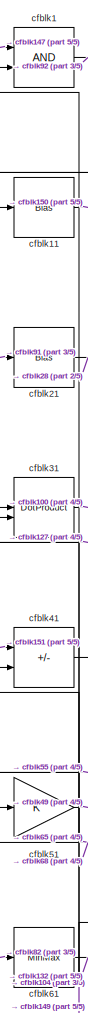
[diagram: root canvas - part 1/5, top left region]
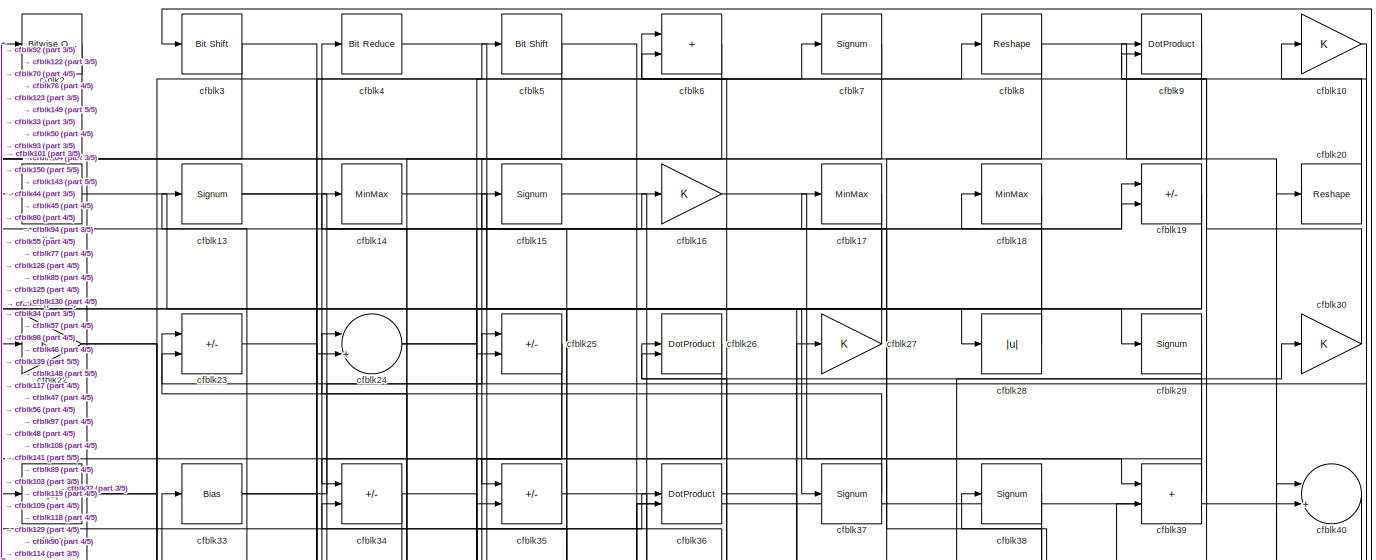
[diagram: root canvas - part 2/5, full width, top band]
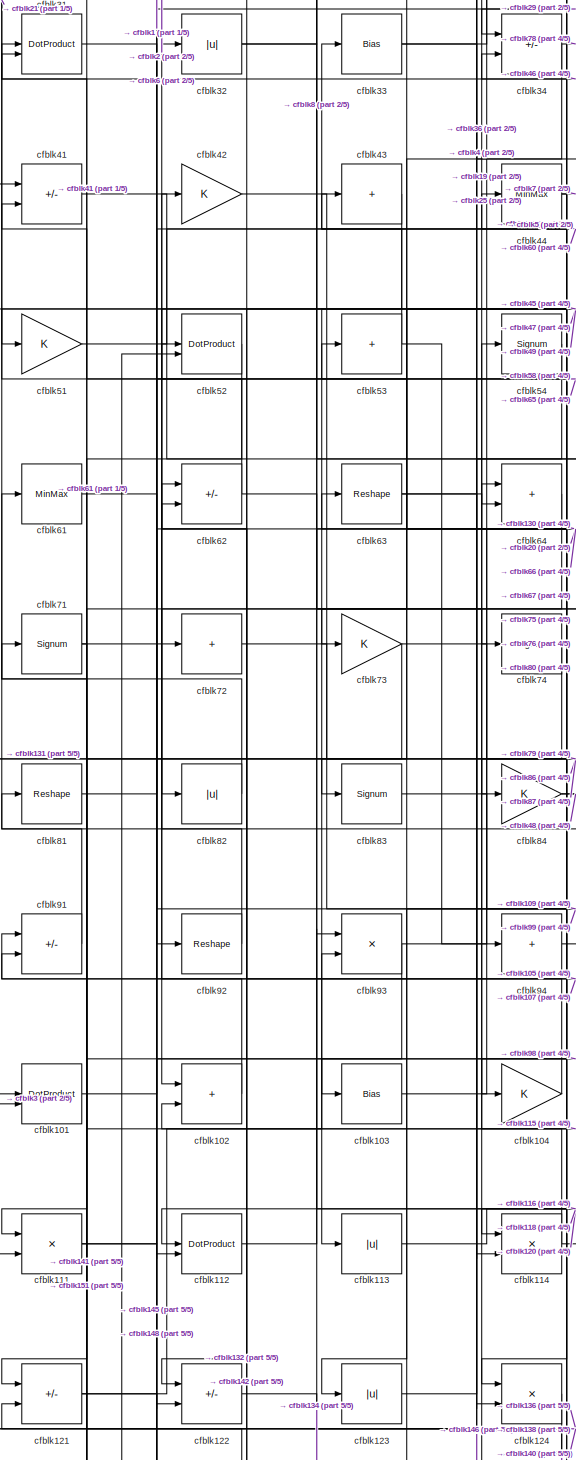
[diagram: root canvas - part 3/5, middle left region]
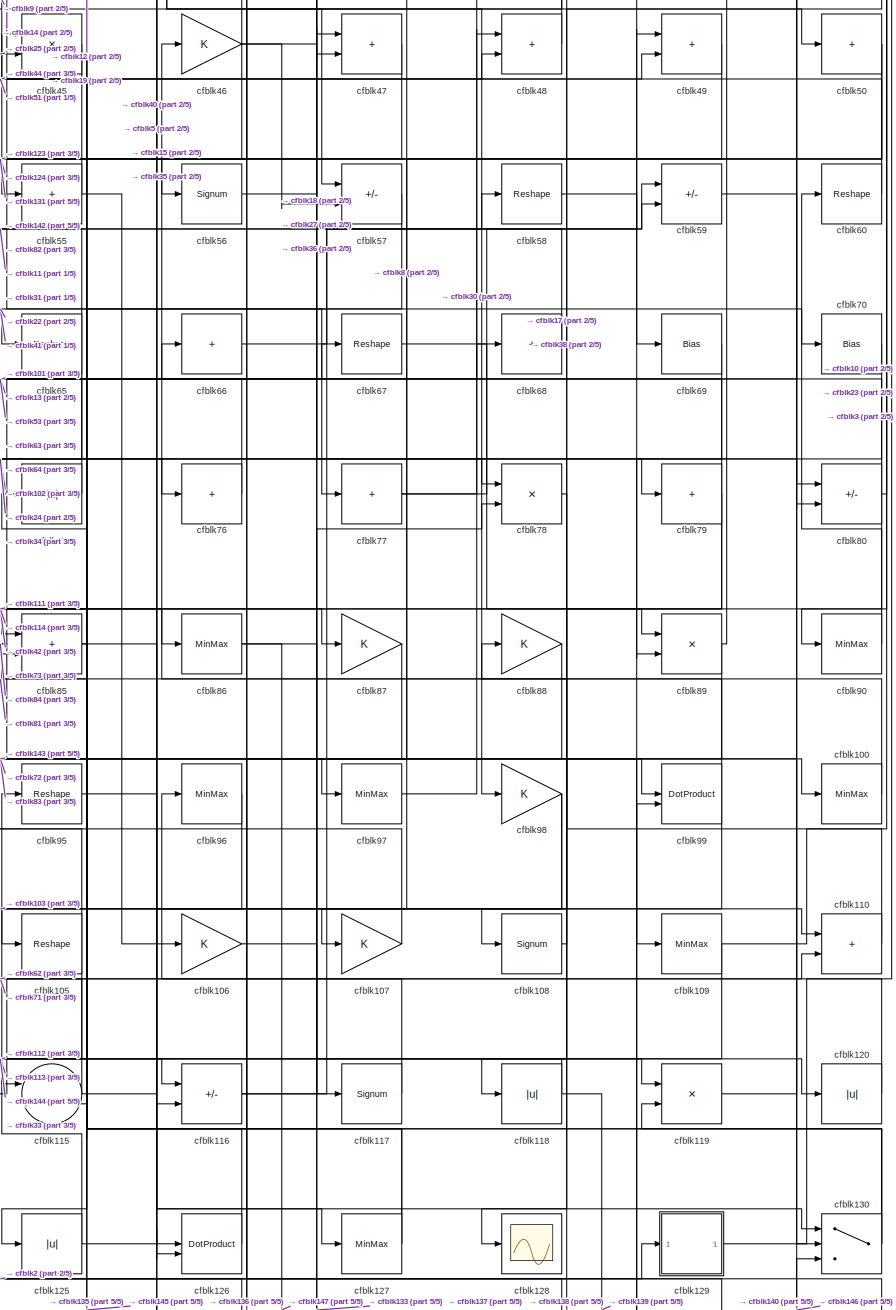
[diagram: root canvas - part 4/5, middle right region]
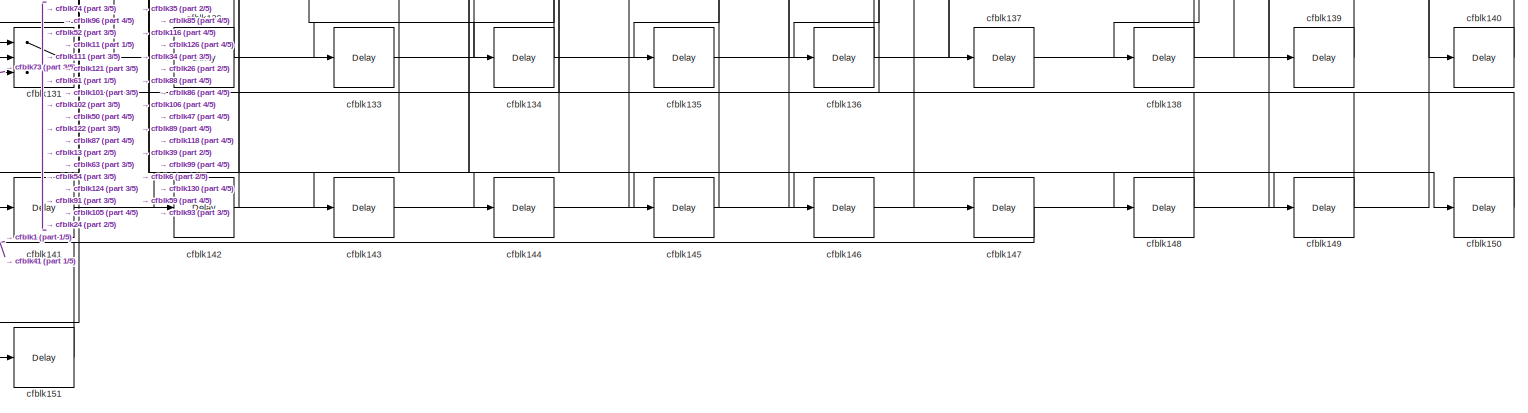
[diagram: root canvas - part 5/5, full width, bottom band]
MODEL slx_e968754c222d
KIND model
CONFIG AbsTol = auto
CONFIG EnableMultiTasking = off
CONFIG FixedStep = auto
CONFIG MaxStep = auto
CONFIG MinStep = auto
CONFIG RelTol = 1e-3
CONFIG SampleTimeConstraint = Unconstrained
CONFIG SolverName = VariableStepAuto
CONFIG StartTime = 0.0
CONFIG StopTime = 10.0
BLOCK [Logic] cfblk1
  AllPortsSameDT = off
  OutDataTypeStr = boolean
BLOCK [Gain] cfblk10
BLOCK [MinMax] cfblk100
BLOCK [DotProduct] cfblk101
  OutDataTypeStr = Inherit: Inherit via internal rule
BLOCK [Sum] cfblk102
  IconShape = rectangular
BLOCK [Bias] cfblk103
  Bias = 0.0
  SaturateOnIntegerOverflow = off
BLOCK [Gain] cfblk104
BLOCK [Reshape] cfblk105
BLOCK [Gain] cfblk106
BLOCK [Gain] cfblk107
BLOCK [Signum] cfblk108
BLOCK [MinMax] cfblk109
BLOCK [Bias] cfblk11
  Bias = 0.0
  SaturateOnIntegerOverflow = off
BLOCK [Sum] cfblk110
  IconShape = rectangular
BLOCK [Product] cfblk111
  Inputs = */
  RndMeth = Zero
  SaturateOnIntegerOverflow = on
BLOCK [DotProduct] cfblk112
  OutDataTypeStr = Inherit: Inherit via internal rule
BLOCK [Abs] cfblk113
  SaturateOnIntegerOverflow = off
BLOCK [Product] cfblk114
  Inputs = */
  RndMeth = Zero
  SaturateOnIntegerOverflow = on
BLOCK [Sum] cfblk115
  Inputs = |++
BLOCK [Sum] cfblk116
  IconShape = rectangular
  Inputs = +-
BLOCK [Signum] cfblk117
BLOCK [Abs] cfblk118
  SaturateOnIntegerOverflow = off
BLOCK [Product] cfblk119
  Inputs = */
  RndMeth = Zero
  SaturateOnIntegerOverflow = on
BLOCK [Signum] cfblk12
BLOCK [Abs] cfblk120
  SaturateOnIntegerOverflow = off
BLOCK [Sum] cfblk121
  IconShape = rectangular
  Inputs = +-
BLOCK [Sum] cfblk122
  IconShape = rectangular
  Inputs = +-
BLOCK [Abs] cfblk123
  SaturateOnIntegerOverflow = off
BLOCK [Product] cfblk124
  Inputs = */
  RndMeth = Zero
  SaturateOnIntegerOverflow = on
BLOCK [Abs] cfblk125
  SaturateOnIntegerOverflow = off
BLOCK [DotProduct] cfblk126
  OutDataTypeStr = Inherit: Inherit via internal rule
BLOCK [MinMax] cfblk127
BLOCK [Scope] cfblk128
  Floating = off
  NumInputPorts = 1
  ScopeSpecificationString = Simulink.scopes.TimeScopeBlockCfg('CurrentConfiguration', extmgr.ConfigurationSet(extmgr.Configuration('Core','General UI',true),extmgr.Configuration('Core','Source UI',true),extmgr.Configuration('Sources','WiredSimulink',true,'DataLoggingVariableName','ScopeData2','DataLoggingSaveFormat','Array','DataLoggingLimitDataPoints',true,'DataLoggingDecimation','1'),extmgr.Configuration('Visuals','Time Do...<+868ch>
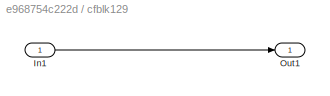
BLOCK [SubSystem] cfblk129
  LibrarySourceBlock = hdlsllib/Ports &\nSubsystems/Subsystem
BLOCK [Inport] cfblk129/In1
BLOCK [Outport] cfblk129/Out1
BLOCK [Signum] cfblk13
BLOCK [Switch] cfblk130
  InputSameDT = off
  SaturateOnIntegerOverflow = off
BLOCK [Switch] cfblk131
  InputSameDT = off
  SaturateOnIntegerOverflow = off
BLOCK [Delay] cfblk132
  InputPortMap = u0
  SampleTime = 1
BLOCK [Delay] cfblk133
  InputPortMap = u0
  SampleTime = 1
BLOCK [Delay] cfblk134
  InputPortMap = u0
  SampleTime = 1
BLOCK [Delay] cfblk135
  InputPortMap = u0
  SampleTime = 1
BLOCK [Delay] cfblk136
  InputPortMap = u0
  SampleTime = 1
BLOCK [Delay] cfblk137
  InputPortMap = u0
  SampleTime = 1
BLOCK [Delay] cfblk138
  InputPortMap = u0
  SampleTime = 1
BLOCK [Delay] cfblk139
  InputPortMap = u0
  SampleTime = 1
BLOCK [MinMax] cfblk14
BLOCK [Delay] cfblk140
  InputPortMap = u0
  SampleTime = 1
BLOCK [Delay] cfblk141
  InputPortMap = u0
  SampleTime = 1
BLOCK [Delay] cfblk142
  InputPortMap = u0
  SampleTime = 1
BLOCK [Delay] cfblk143
  InputPortMap = u0
  SampleTime = 1
BLOCK [Delay] cfblk144
  InputPortMap = u0
  SampleTime = 1
BLOCK [Delay] cfblk145
  InputPortMap = u0
  SampleTime = 1
BLOCK [Delay] cfblk146
  InputPortMap = u0
  SampleTime = 1
BLOCK [Delay] cfblk147
  InputPortMap = u0
  SampleTime = 1
BLOCK [Delay] cfblk148
  InputPortMap = u0
  SampleTime = 1
BLOCK [Delay] cfblk149
  InputPortMap = u0
  SampleTime = 1
BLOCK [Signum] cfblk15
BLOCK [Delay] cfblk150
  InputPortMap = u0
  SampleTime = 1
BLOCK [Delay] cfblk151
  InputPortMap = u0
  SampleTime = 1
BLOCK [Gain] cfblk16
BLOCK [MinMax] cfblk17
BLOCK [MinMax] cfblk18
BLOCK [Sum] cfblk19
  IconShape = rectangular
  Inputs = +-
BLOCK [Reference] cfblk2  REF=simulink/Logic and Bit
Operations/Bitwise
Operator
  LibrarySourceBlock = hdlsllib/Logic and Bit\nOperations/Bitwise\nOperator
  SourceBlock = simulink/Logic and Bit\nOperations/Bitwise\nOperator
  SourceType = Bitwise Operator
BLOCK [Reshape] cfblk20
BLOCK [Bias] cfblk21
  Bias = 0.0
  SaturateOnIntegerOverflow = off
BLOCK [Gain] cfblk22
BLOCK [Sum] cfblk23
  IconShape = rectangular
  Inputs = +-
BLOCK [Sum] cfblk24
  Inputs = |++
BLOCK [Sum] cfblk25
  IconShape = rectangular
  Inputs = +-
BLOCK [DotProduct] cfblk26
  OutDataTypeStr = Inherit: Inherit via internal rule
BLOCK [Gain] cfblk27
BLOCK [Abs] cfblk28
  SaturateOnIntegerOverflow = off
BLOCK [Signum] cfblk29
BLOCK [Reference] cfblk3  REF=hdlsllib/Logic and Bit
Operations/Bit Shift
  SourceBlock = hdlsllib/Logic and Bit\nOperations/Bit Shift
  SourceType = Bit Shift
BLOCK [Gain] cfblk30
BLOCK [DotProduct] cfblk31
  OutDataTypeStr = Inherit: Inherit via internal rule
BLOCK [Abs] cfblk32
  SaturateOnIntegerOverflow = off
BLOCK [Bias] cfblk33
  Bias = 0.0
  SaturateOnIntegerOverflow = off
BLOCK [Sum] cfblk34
  IconShape = rectangular
  Inputs = +-
BLOCK [Sum] cfblk35
  IconShape = rectangular
  Inputs = +-
BLOCK [DotProduct] cfblk36
  OutDataTypeStr = Inherit: Inherit via internal rule
BLOCK [Signum] cfblk37
BLOCK [Signum] cfblk38
BLOCK [Sum] cfblk39
  IconShape = rectangular
BLOCK [Reference] cfblk4  REF=hdlsllib/Logic and Bit
Operations/Bit Reduce
  SourceBlock = hdlsllib/Logic and Bit\nOperations/Bit Reduce
  SourceType = Bit Reduce
BLOCK [Sum] cfblk40
  Inputs = |++
BLOCK [Sum] cfblk41
  IconShape = rectangular
  Inputs = +-
BLOCK [Gain] cfblk42
BLOCK [Sum] cfblk43
  IconShape = rectangular
  Inputs = +
BLOCK [MinMax] cfblk44
BLOCK [Product] cfblk45
  Inputs = */
  RndMeth = Zero
  SaturateOnIntegerOverflow = on
BLOCK [Gain] cfblk46
BLOCK [Sum] cfblk47
  IconShape = rectangular
BLOCK [Sum] cfblk48
  IconShape = rectangular
BLOCK [Sum] cfblk49
  IconShape = rectangular
BLOCK [Reference] cfblk5  REF=hdlsllib/Logic and Bit
Operations/Bit Shift
  SourceBlock = hdlsllib/Logic and Bit\nOperations/Bit Shift
  SourceType = Bit Shift
BLOCK [Sum] cfblk50
  IconShape = rectangular
  Inputs = +
BLOCK [Gain] cfblk51
BLOCK [DotProduct] cfblk52
  OutDataTypeStr = Inherit: Inherit via internal rule
BLOCK [Sum] cfblk53
  IconShape = rectangular
  Inputs = +
BLOCK [Signum] cfblk54
BLOCK [Sum] cfblk55
  IconShape = rectangular
  Inputs = +
BLOCK [Signum] cfblk56
BLOCK [Sum] cfblk57
  IconShape = rectangular
  Inputs = +-
BLOCK [Reshape] cfblk58
BLOCK [Sum] cfblk59
  IconShape = rectangular
  Inputs = +-
BLOCK [Sum] cfblk6
  IconShape = rectangular
BLOCK [Reshape] cfblk60
BLOCK [MinMax] cfblk61
BLOCK [Sum] cfblk62
  IconShape = rectangular
  Inputs = +-
BLOCK [Reshape] cfblk63
BLOCK [Sum] cfblk64
  IconShape = rectangular
BLOCK [Reshape] cfblk65
BLOCK [Sum] cfblk66
  IconShape = rectangular
  Inputs = +
BLOCK [Reshape] cfblk67
BLOCK [Sum] cfblk68
  IconShape = rectangular
  Inputs = +
BLOCK [Bias] cfblk69
  Bias = 0.0
  SaturateOnIntegerOverflow = off
BLOCK [Signum] cfblk7
BLOCK [Bias] cfblk70
  Bias = 0.0
  SaturateOnIntegerOverflow = off
BLOCK [Signum] cfblk71
BLOCK [Sum] cfblk72
  IconShape = rectangular
  Inputs = +
BLOCK [Gain] cfblk73
BLOCK [Signum] cfblk74
BLOCK [Abs] cfblk75
  SaturateOnIntegerOverflow = off
BLOCK [Sum] cfblk76
  IconShape = rectangular
  Inputs = +
BLOCK [Sum] cfblk77
  IconShape = rectangular
  Inputs = +
BLOCK [Product] cfblk78
  Inputs = */
  RndMeth = Zero
  SaturateOnIntegerOverflow = on
BLOCK [Sum] cfblk79
  IconShape = rectangular
  Inputs = +
BLOCK [Reshape] cfblk8
BLOCK [Sum] cfblk80
  IconShape = rectangular
  Inputs = +-
BLOCK [Reshape] cfblk81
BLOCK [Abs] cfblk82
  SaturateOnIntegerOverflow = off
BLOCK [Signum] cfblk83
BLOCK [Gain] cfblk84
BLOCK [Sum] cfblk85
  IconShape = rectangular
BLOCK [MinMax] cfblk86
BLOCK [Gain] cfblk87
BLOCK [Gain] cfblk88
BLOCK [Product] cfblk89
  Inputs = */
  RndMeth = Zero
  SaturateOnIntegerOverflow = on
BLOCK [DotProduct] cfblk9
  OutDataTypeStr = Inherit: Inherit via internal rule
BLOCK [MinMax] cfblk90
BLOCK [Sum] cfblk91
  IconShape = rectangular
  Inputs = +-
BLOCK [Reshape] cfblk92
BLOCK [Product] cfblk93
  Inputs = */
  RndMeth = Zero
  SaturateOnIntegerOverflow = on
BLOCK [Sum] cfblk94
  IconShape = rectangular
  Inputs = +
BLOCK [Reshape] cfblk95
BLOCK [MinMax] cfblk96
BLOCK [MinMax] cfblk97
BLOCK [Gain] cfblk98
BLOCK [DotProduct] cfblk99
  OutDataTypeStr = Inherit: Inherit via internal rule
LINE cfblk100:1 -> cfblk46:1
LINE cfblk101:1 -> cfblk66:1
LINE cfblk102:1 -> cfblk91:1
LINE cfblk103:1 -> cfblk20:1
LINE cfblk104:1 -> cfblk41:2
NET cfblk105:1 -> cfblk144:1, cfblk62:2
LINE cfblk106:1 -> cfblk137:1
LINE cfblk107:1 -> cfblk42:1
LINE cfblk108:1 -> cfblk38:1
NET cfblk109:1 -> cfblk115:2, cfblk23:1
LINE cfblk10:1 -> cfblk90:1
LINE cfblk110:1 -> cfblk88:1
NET cfblk111:1 -> cfblk145:1, cfblk58:1
LINE cfblk112:1 -> cfblk67:1
LINE cfblk113:1 -> cfblk116:1
NET cfblk114:1 -> cfblk36:2, cfblk4:1
NET cfblk115:1 -> cfblk110:2, cfblk62:1
NET cfblk116:1 -> cfblk59:1, cfblk78:2
LINE cfblk117:1 -> cfblk96:1
NET cfblk118:1 -> cfblk112:1, cfblk139:1
LINE cfblk119:1 -> cfblk40:1
LINE cfblk11:1 -> cfblk150:1
LINE cfblk120:1 -> cfblk71:1
NET cfblk121:1 -> cfblk148:1, cfblk93:2
LINE cfblk122:1 -> cfblk134:1
LINE cfblk123:1 -> cfblk5:1
LINE cfblk124:1 -> cfblk133:1
NET cfblk125:1 -> cfblk40:2, cfblk95:1
LINE cfblk126:1 -> cfblk12:1
NET cfblk127:1 -> cfblk31:1, cfblk44:1
LINE cfblk129/In1:1 -> cfblk129/Out1:1
LINE cfblk129:1 -> cfblk3:1
LINE cfblk12:1 -> cfblk24:2
NET cfblk130:1 -> cfblk119:2, cfblk63:1, cfblk75:1
NET cfblk131:1 -> cfblk52:2, cfblk54:1
LINE cfblk132:1 -> cfblk101:1
LINE cfblk133:1 -> cfblk47:1
LINE cfblk134:1 -> cfblk91:2
LINE cfblk135:1 -> cfblk126:1
LINE cfblk136:1 -> cfblk34:2
LINE cfblk137:1 -> cfblk99:2
LINE cfblk138:1 -> cfblk121:2
LINE cfblk139:1 -> cfblk6:2
NET cfblk13:1 -> cfblk149:1, cfblk19:2
LINE cfblk140:1 -> cfblk93:1
LINE cfblk141:1 -> cfblk39:2
LINE cfblk142:1 -> cfblk102:2
LINE cfblk143:1 -> cfblk35:2
LINE cfblk144:1 -> cfblk116:2
LINE cfblk145:1 -> cfblk85:2
LINE cfblk146:1 -> cfblk130:3
LINE cfblk147:1 -> cfblk1:1
LINE cfblk148:1 -> cfblk26:2
LINE cfblk149:1 -> cfblk1:2
LINE cfblk14:1 -> cfblk77:1
LINE cfblk150:1 -> cfblk24:1
LINE cfblk151:1 -> cfblk41:1
LINE cfblk15:1 -> cfblk57:1
LINE cfblk16:1 -> cfblk39:1
LINE cfblk17:1 -> cfblk25:2
LINE cfblk18:1 -> cfblk47:2
NET cfblk19:1 -> cfblk122:1, cfblk85:1
LINE cfblk1:1 -> cfblk92:1
LINE cfblk20:1 -> cfblk6:1
LINE cfblk21:1 -> cfblk28:1
NET cfblk22:1 -> cfblk70:1, cfblk76:1
LINE cfblk23:1 -> cfblk50:1
NET cfblk24:1 -> cfblk16:1, cfblk80:2
NET cfblk25:1 -> cfblk122:2, cfblk45:2
LINE cfblk26:1 -> cfblk35:1
LINE cfblk27:1 -> cfblk15:1
LINE cfblk28:1 -> cfblk18:1
LINE cfblk29:1 -> cfblk104:1
LINE cfblk2:1 -> cfblk129:1
LINE cfblk30:1 -> cfblk9:2
LINE cfblk31:1 -> cfblk100:1
NET cfblk32:1 -> cfblk74:1, cfblk8:1
NET cfblk33:1 -> cfblk120:1, cfblk25:1
NET cfblk34:1 -> cfblk78:1, cfblk83:1
LINE cfblk35:1 -> cfblk98:1
LINE cfblk36:1 -> cfblk117:1
LINE cfblk37:1 -> cfblk23:2
LINE cfblk38:1 -> cfblk56:1
LINE cfblk39:1 -> cfblk26:1
NET cfblk3:1 -> cfblk101:2, cfblk29:1
LINE cfblk40:1 -> cfblk118:1
LINE cfblk41:1 -> cfblk65:1
LINE cfblk42:1 -> cfblk87:1
LINE cfblk43:1 -> cfblk113:1
NET cfblk44:1 -> cfblk7:1, cfblk84:1
LINE cfblk45:1 -> cfblk124:1
NET cfblk46:1 -> cfblk14:1, cfblk57:2, cfblk73:1, cfblk79:1
LINE cfblk47:1 -> cfblk123:1
LINE cfblk48:1 -> cfblk17:1
LINE cfblk49:1 -> cfblk82:1
LINE cfblk4:1 -> cfblk37:1
NET cfblk50:1 -> cfblk107:1, cfblk131:2, cfblk142:1
LINE cfblk51:1 -> cfblk49:2
LINE cfblk52:1 -> cfblk141:1
NET cfblk53:1 -> cfblk43:1, cfblk94:1
LINE cfblk54:1 -> cfblk124:2
NET cfblk55:1 -> cfblk106:1, cfblk51:1
LINE cfblk56:1 -> cfblk27:1
LINE cfblk57:1 -> cfblk105:1
LINE cfblk58:1 -> cfblk69:1
LINE cfblk59:1 -> cfblk140:1
NET cfblk5:1 -> cfblk130:1, cfblk34:1
LINE cfblk60:1 -> cfblk33:1
LINE cfblk61:1 -> cfblk132:1
NET cfblk62:1 -> cfblk114:2, cfblk52:1
NET cfblk63:1 -> cfblk146:1, cfblk64:2
LINE cfblk64:1 -> cfblk111:1
NET cfblk65:1 -> cfblk102:1, cfblk31:2
LINE cfblk66:1 -> cfblk49:1
LINE cfblk67:1 -> cfblk89:1
LINE cfblk68:1 -> cfblk11:1
LINE cfblk69:1 -> cfblk89:2
LINE cfblk6:1 -> cfblk32:1
LINE cfblk70:1 -> cfblk125:1
NET cfblk71:1 -> cfblk121:1, cfblk72:1
LINE cfblk72:1 -> cfblk109:1
NET cfblk73:1 -> cfblk131:3, cfblk86:1
LINE cfblk74:1 -> cfblk151:1
LINE cfblk75:1 -> cfblk64:1
LINE cfblk76:1 -> cfblk53:1
NET cfblk77:1 -> cfblk30:1, cfblk59:2
LINE cfblk78:1 -> cfblk108:1
NET cfblk79:1 -> cfblk114:1, cfblk128:1, cfblk45:1
LINE cfblk7:1 -> cfblk22:1
NET cfblk80:1 -> cfblk10:1, cfblk111:2, cfblk13:1
LINE cfblk81:1 -> cfblk48:2
LINE cfblk82:1 -> cfblk61:1
LINE cfblk83:1 -> cfblk99:1
NET cfblk84:1 -> cfblk130:2, cfblk48:1
NET cfblk85:1 -> cfblk127:1, cfblk135:1
NET cfblk86:1 -> cfblk119:1, cfblk147:1
LINE cfblk87:1 -> cfblk143:1
LINE cfblk88:1 -> cfblk136:1
NET cfblk89:1 -> cfblk138:1, cfblk9:1
NET cfblk8:1 -> cfblk80:1, cfblk97:1
LINE cfblk90:1 -> cfblk60:1
LINE cfblk91:1 -> cfblk21:1
LINE cfblk92:1 -> cfblk2:1
NET cfblk93:1 -> cfblk112:2, cfblk19:1
LINE cfblk94:1 -> cfblk36:1
LINE cfblk95:1 -> cfblk110:1
LINE cfblk96:1 -> cfblk131:1
LINE cfblk97:1 -> cfblk68:1
NET cfblk98:1 -> cfblk103:1, cfblk115:1
NET cfblk99:1 -> cfblk126:2, cfblk81:1
LINE cfblk9:1 -> cfblk55:1
note: NET lines group one-source signal fan-out (src -> all destinations, sorted); 1:1 wires keep LINE
